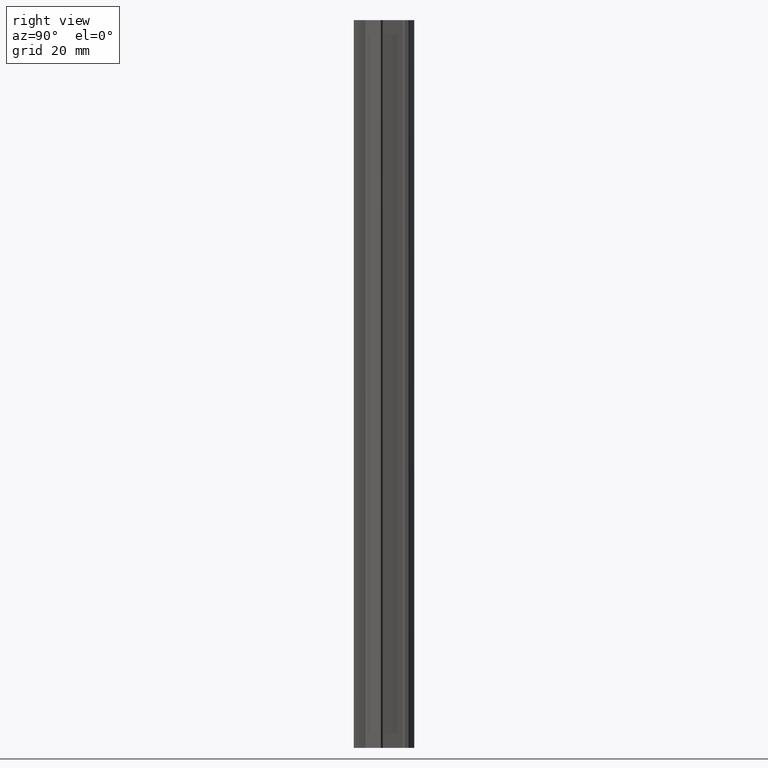
[diagram: clean part render]
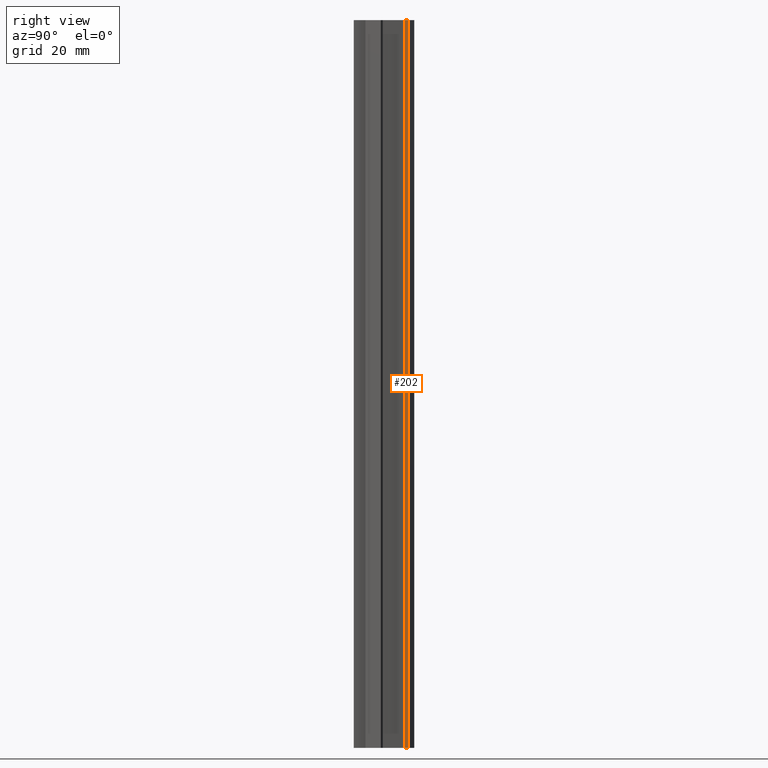
[diagram: same view with one face highlighted and labeled with its STEP entity id]
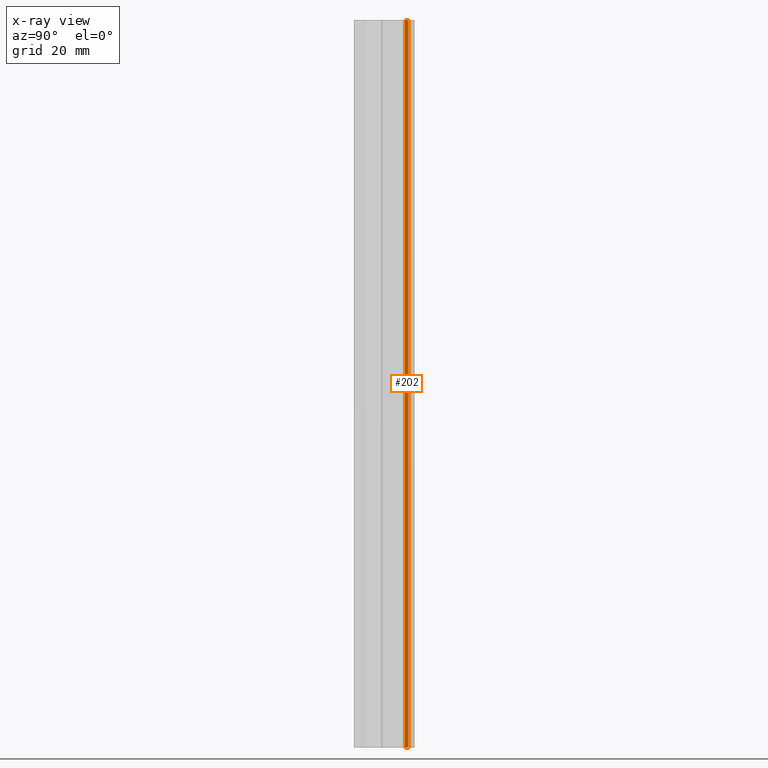
[diagram: x-ray of the same camera — body ghosted, the highlighted face saturated]
A machine part, right view. The second image highlights one B-rep face of the part: STEP entity #202.
The next image is the same camera in x-ray: the body ghosted, the highlighted face saturated — about 0% of this face is hidden behind the body in this view.
In plain terms, the highlighted planar face has unit normal (1, 0, 0).
Its self-contained STEP definition (entity closure, byte-faithful):
#144=CARTESIAN_POINT('',(5.900118662993009,8.814530131073298,0.0));
#145=VERTEX_POINT('',#144);
#153=CARTESIAN_POINT('',(5.900118662993009,8.814530131073298,156.662099546738520));
#154=VERTEX_POINT('',#153);
#155=CARTESIAN_POINT('',(5.900118662993009,8.814530131073298,0.0));
#156=DIRECTION('',(0.0,0.0,1.0));
#157=VECTOR('',#156,156.662099546738520);
#158=LINE('',#155,#157);
#159=EDGE_CURVE('',#145,#154,#158,.T.);
#172=CARTESIAN_POINT('',(5.900118662993009,8.778246364674487,-7.833104977336927));
#173=DIRECTION('',(1.0,0.0,0.0));
#174=DIRECTION('',(0.0,1.0,0.0));
#175=AXIS2_PLACEMENT_3D('',#172,#173,#174);
#176=PLANE('',#175);
#177=CARTESIAN_POINT('',(5.900118662992099,9.540205459052231,0.0));
#178=VERTEX_POINT('',#177);
#179=CARTESIAN_POINT('',(5.900118662993009,8.814530131073298,0.0));
#180=DIRECTION('',(0.0,1.0,0.0));
#181=VECTOR('',#180,0.725675327978934);
#182=LINE('',#179,#181);
#183=EDGE_CURVE('',#145,#178,#182,.T.);
#184=ORIENTED_EDGE('',*,*,#183,.T.);
#185=CARTESIAN_POINT('',(5.900118662992099,9.540205459052231,156.662099546738520));
#186=VERTEX_POINT('',#185);
#187=CARTESIAN_POINT('',(5.900118662992099,9.540205459052231,0.0));
#188=DIRECTION('',(0.0,0.0,1.0));
#189=VECTOR('',#188,156.662099546738520);
#190=LINE('',#187,#189);
#191=EDGE_CURVE('',#178,#186,#190,.T.);
#192=ORIENTED_EDGE('',*,*,#191,.T.);
#193=CARTESIAN_POINT('',(5.900118662993009,8.814530131073298,156.662099546738520));
#194=DIRECTION('',(0.0,1.0,0.0));
#195=VECTOR('',#194,0.725675327978934);
#196=LINE('',#193,#195);
#197=EDGE_CURVE('',#154,#186,#196,.T.);
#198=ORIENTED_EDGE('',*,*,#197,.F.);
#199=ORIENTED_EDGE('',*,*,#159,.F.);
#200=EDGE_LOOP('',(#184,#192,#198,#199));
#201=FACE_OUTER_BOUND('',#200,.T.);
#202=ADVANCED_FACE('',(#201),#176,.T.);